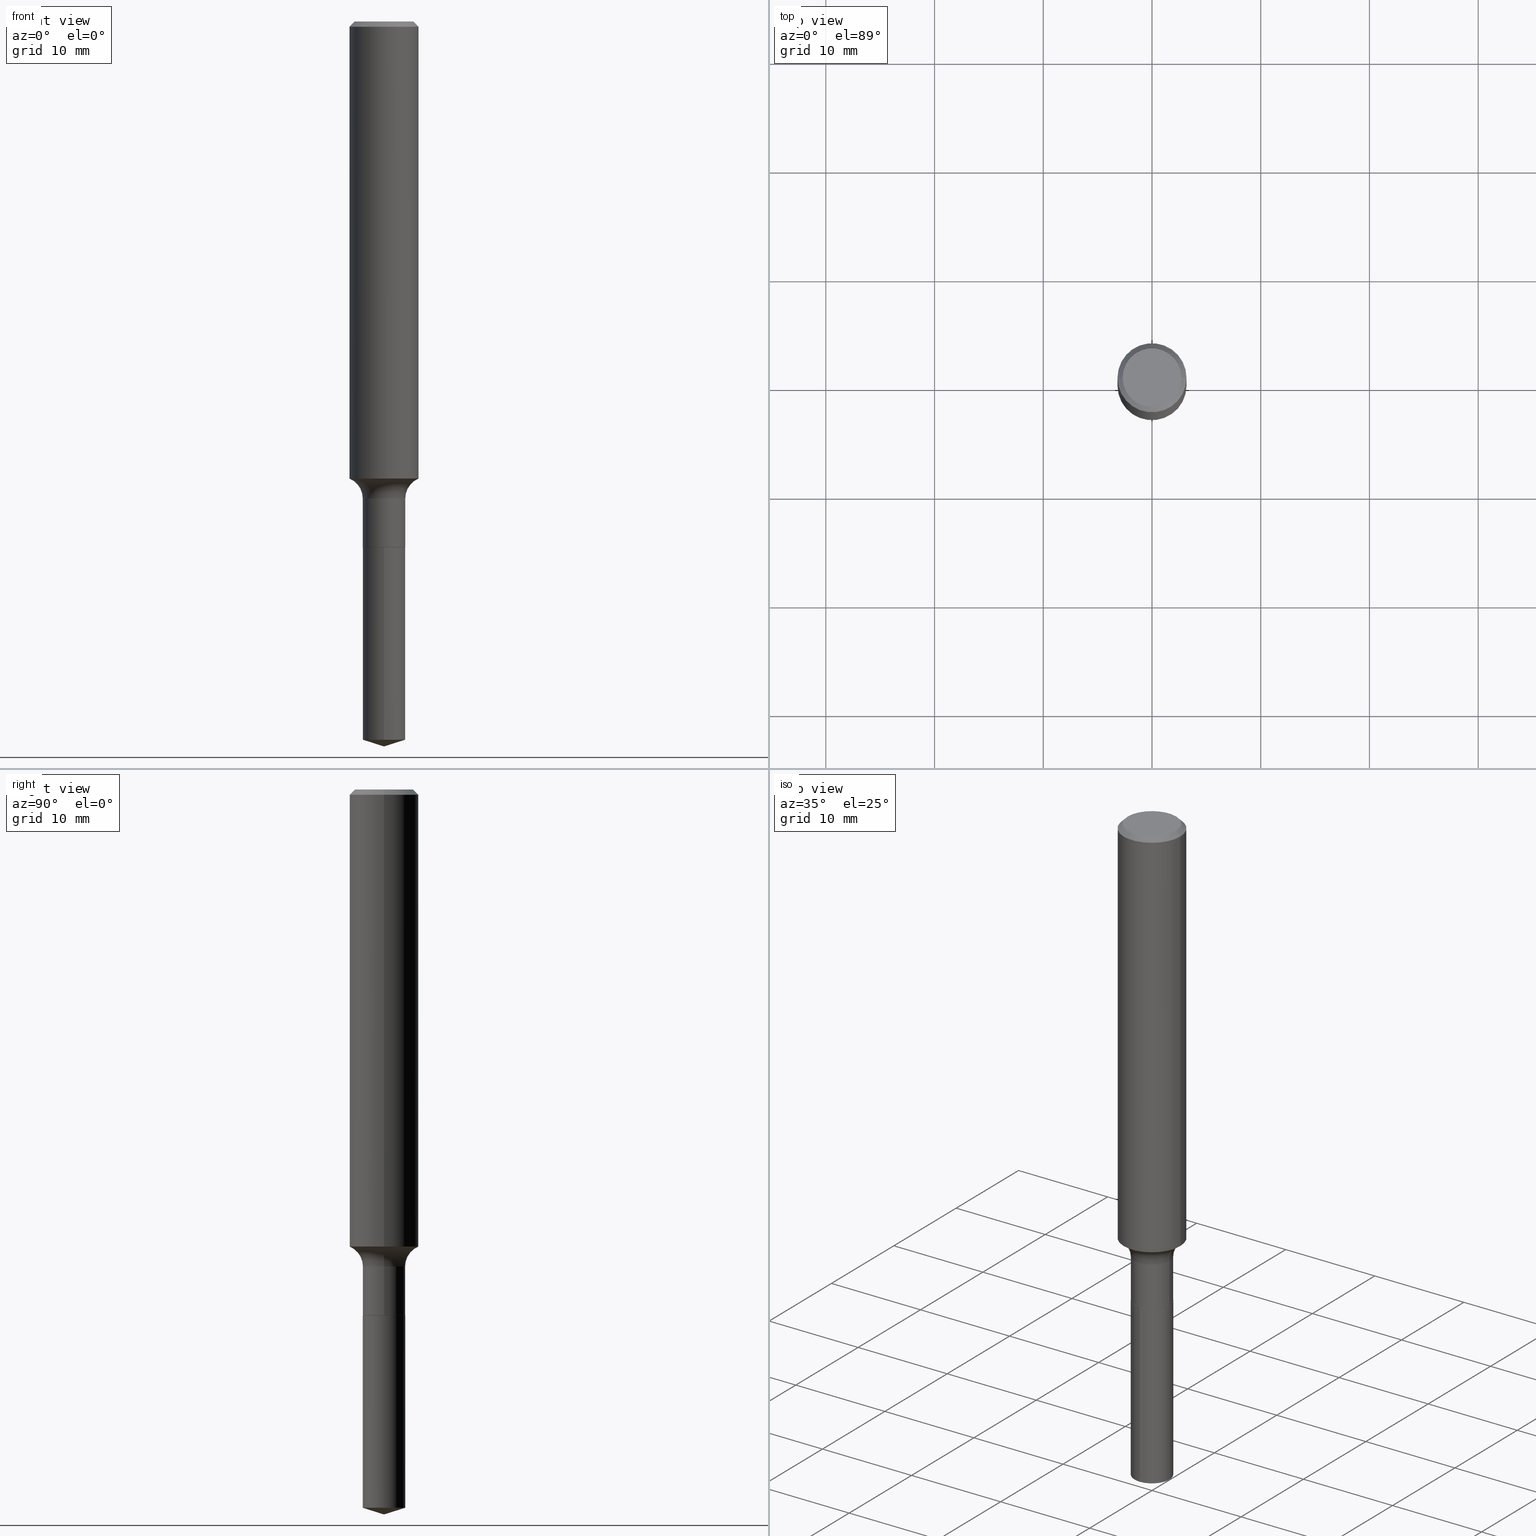
[diagram: canonical four-view strip — front | top / right | iso, engineering-drawing reading convention]
A machine part, canonical four-view strip (front | top / right | iso — engineering-drawing reading convention). The complete STEP part file that produces these views, byte-faithful:
ISO-10303-21;
HEADER;
FILE_DESCRIPTION (( 'STEP AP203' ),
    '1' );
FILE_NAME ('51764.STEP',
    '2024-04-19T13:18:05',
    ( '' ),
    ( '' ),
    'SwSTEP 2.0',
    'SolidWorks 2023',
    '' );
FILE_SCHEMA (( 'CONFIG_CONTROL_DESIGN' ));
ENDSEC;

DATA;
#1 = VERTEX_POINT ( 'NONE', #237 ) ;
#2 = CIRCLE ( 'NONE', #134, 0.07699999999999997125 ) ;
#3 = APPROVAL_STATUS ( 'not_yet_approved' ) ;
#4 = ORGANIZATION ( 'UNSPECIFIED', 'UNSPECIFIED', '' ) ;
#5 = ORIENTED_EDGE ( 'NONE', *, *, #262, .F. ) ;
#6 = DATE_TIME_ROLE ( 'classification_date' ) ;
#7 = DIRECTION ( 'NONE',  ( -2.445468806185136597E-29, 3.491481338843145583E-15, 1.000000000000000000 ) ) ;
#8 = DATE_AND_TIME ( #197, #384 ) ;
#9 = DIRECTION ( 'NONE',  ( 1.000000000000000000, -6.982962677686266711E-15, 0.000000000000000000 ) ) ;
#10 = DATE_TIME_ROLE ( 'creation_date' ) ;
#11 = DIRECTION ( 'NONE',  ( 2.445442214276502964E-29, -3.491519419969825765E-15, -1.000000000000000000 ) ) ;
#12 = MECHANICAL_CONTEXT ( 'NONE', #323, 'mechanical' ) ;
#13 = EDGE_CURVE ( 'NONE', #137, #343, #199, .T. ) ;
#14 = CARTESIAN_POINT ( 'NONE',  ( 5.471179065353404421E-16, 0.07699999999999086742, -2.600721993256319475 ) ) ;
#15 = FACE_OUTER_BOUND ( 'NONE', #427, .T. ) ;
#16 = CARTESIAN_POINT ( 'NONE',  ( 0.1250000000000000000, -9.230275248247509846E-16, -0.01875000000000013808 ) ) ;
#17 = CIRCLE ( 'NONE', #452, 0.07699999999999998512 ) ;
#18 = CC_DESIGN_APPROVAL ( #242, ( #141 ) ) ;
#19 = EDGE_LOOP ( 'NONE', ( #354, #466, #403, #139 ) ) ;
#20 = EDGE_CURVE ( 'NONE', #35, #359, #177, .T. ) ;
#21 = DIRECTION ( 'NONE',  ( -6.982962677686266711E-15, -1.000000000000000000, 0.000000000000000000 ) ) ;
#22 = VERTEX_POINT ( 'NONE', #355 ) ;
#23 = CARTESIAN_POINT ( 'NONE',  ( 6.359965980900373089E-29, -9.080398838931874452E-15, -2.600721993256319475 ) ) ;
#24 = ORIENTED_EDGE ( 'NONE', *, *, #330, .F. ) ;
#25 = DIRECTION ( 'NONE',  ( -2.445442214276503244E-29, 3.491519419969825765E-15, 1.000000000000000000 ) ) ;
#26 = CLOSED_SHELL ( 'NONE', ( #85, #312, #105, #477, #78 ) ) ;
#27 = VERTEX_POINT ( 'NONE', #313 ) ;
#28 = DIRECTION ( 'NONE',  ( -2.445468806185136597E-29, 3.491481338843145583E-15, 1.000000000000000000 ) ) ;
#29 = EDGE_CURVE ( 'NONE', #419, #343, #310, .T. ) ;
#30 = ORIENTED_EDGE ( 'NONE', *, *, #351, .F. ) ;
#31 = LINE ( 'NONE', #302, #179 ) ;
#32 = CARTESIAN_POINT ( 'NONE',  ( 4.585254011597164750E-31, -6.546527510330946532E-17, -0.01875000000000013808 ) ) ;
#33 = EDGE_CURVE ( 'NONE', #359, #35, #58, .T. ) ;
#34 = FACE_OUTER_BOUND ( 'NONE', #19, .T. ) ;
#35 = VERTEX_POINT ( 'NONE', #122 ) ;
#36 = DIRECTION ( 'NONE',  ( 0.7071067811866199593, -2.468850131083015945E-15, 0.7071067811864750752 ) ) ;
#37 = EDGE_CURVE ( 'NONE', #364, #317, #361, .T. ) ;
#38 = VERTEX_POINT ( 'NONE', #14 ) ;
#39 = AXIS2_PLACEMENT_3D ( 'NONE', #87, #307, #318 ) ;
#40 = APPROVAL_PERSON_ORGANIZATION ( #234, #269, #113 ) ;
#41 = APPROVAL_ROLE ( '' ) ;
#42 = DIRECTION ( 'NONE',  ( 1.000000000000000000, -6.982962677686266711E-15, 4.875930095424100059E-29 ) ) ;
#43 = CARTESIAN_POINT ( 'NONE',  ( -0.07649999999999998468, -6.101566049126761138E-15, -1.903999999999999915 ) ) ;
#44 = DATE_AND_TIME ( #455, #144 ) ;
#45 = DIRECTION ( 'NONE',  ( -2.445468806185136597E-29, 3.491481338843145583E-15, 1.000000000000000000 ) ) ;
#46 = DATE_AND_TIME ( #161, #128 ) ;
#47 = PERSON ( 'UNSPECIFIED', 'UNSPECIFIED', 'UNSPECIFIED', ('UNSPECIFIED'), ('UNSPECIFIED'), ('UNSPECIFIED') ) ;
#48 = AXIS2_PLACEMENT_3D ( 'NONE', #281, #235, #245 ) ;
#49 = CARTESIAN_POINT ( 'NONE',  ( -8.985791608710114057E-28, 1.282962285160454060E-13, 36.74507874015748143 ) ) ;
#50 = CIRCLE ( 'NONE', #321, 0.07649999999999998468 ) ;
#51 = DATE_AND_TIME ( #392, #259 ) ;
#52 = PLANE ( 'NONE',  #461 ) ;
#53 = ORIENTED_EDGE ( 'NONE', *, *, #330, .T. ) ;
#54 = DIRECTION ( 'NONE',  ( -2.445468806185136597E-29, 3.491481338843145583E-15, 1.000000000000000000 ) ) ;
#55 = CC_DESIGN_DATE_AND_TIME_ASSIGNMENT ( #51, #6, ( #408 ) ) ;
#56 = ORIENTED_EDGE ( 'NONE', *, *, #345, .F. ) ;
#57 = CARTESIAN_POINT ( 'NONE',  ( 0.000000000000000000, 0.000000000000000000, 0.000000000000000000 ) ) ;
#58 = CIRCLE ( 'NONE', #48, 0.07699999999999998512 ) ;
#59 = VECTOR ( 'NONE', #261, 39.37007874015748854 ) ;
#60 = DIRECTION ( 'NONE',  ( -2.445468806185136597E-29, 3.491481338843145583E-15, 1.000000000000000000 ) ) ;
#61 = EDGE_LOOP ( 'NONE', ( #367, #153, #280, #373 ) ) ;
#62 = CARTESIAN_POINT ( 'NONE',  ( 4.223080081401112602E-29, -6.029439124048228051E-15, -1.726900000000000102 ) ) ;
#63 = ORIENTED_EDGE ( 'NONE', *, *, #491, .F. ) ;
#64 = CC_DESIGN_PERSON_AND_ORGANIZATION_ASSIGNMENT ( #123, #387, ( #159 ) ) ;
#65 = CARTESIAN_POINT ( 'NONE',  ( 6.359965980900373089E-29, -9.080398838931874452E-15, -2.600721993256319475 ) ) ;
#66 = CONICAL_SURFACE ( 'NONE', #344, 0.07649999999999998468, 0.7853981633975507526 ) ;
#67 = VERTEX_POINT ( 'NONE', #116 ) ;
#68 = APPROVAL_PERSON_ORGANIZATION ( #311, #242, #41 ) ;
#69 = FACE_OUTER_BOUND ( 'NONE', #370, .T. ) ;
#70 = LINE ( 'NONE', #298, #81 ) ;
#71 = ADVANCED_FACE ( 'NONE', ( #15 ), #52, .F. ) ;
#72 = AXIS2_PLACEMENT_3D ( 'NONE', #433, #171, #246 ) ;
#73 = DIRECTION ( 'NONE',  ( -2.445468806185136597E-29, 3.491481338843145583E-15, 1.000000000000000000 ) ) ;
#74 = ORIENTED_EDGE ( 'NONE', *, *, #432, .T. ) ;
#75 = DIRECTION ( 'NONE',  ( -2.445468806185136877E-29, 3.491481338843145188E-15, 1.000000000000000000 ) ) ;
#76 = ORIENTED_EDGE ( 'NONE', *, *, #345, .T. ) ;
#77 = PERSON_AND_ORGANIZATION ( #47, #4 ) ;
#78 = ADVANCED_FACE ( 'NONE', ( #278 ), #423, .F. ) ;
#79 = CARTESIAN_POINT ( 'NONE',  ( -0.07699999999999998512, -5.790619019732800574E-15, -1.903499999999999970 ) ) ;
#80 = CIRCLE ( 'NONE', #274, 0.07800000000000006928 ) ;
#81 = VECTOR ( 'NONE', #107, 39.37007874015748143 ) ;
#82 = SHAPE_DEFINITION_REPRESENTATION ( #319, #154 ) ;
#83 = LINE ( 'NONE', #120, #320 ) ;
#84 = DIRECTION ( 'NONE',  ( -1.000000000000000000, 6.982962677686265922E-15, -4.876176775795935793E-29 ) ) ;
#85 = ADVANCED_FACE ( 'NONE', ( #240 ), #429, .T. ) ;
#86 = PERSON_AND_ORGANIZATION_ROLE ( 'creator' ) ;
#87 = CARTESIAN_POINT ( 'NONE',  ( -0.1549999999999999989, -4.928097883620073362E-15, -1.726900000000000102 ) ) ;
#88 = ORIENTED_EDGE ( 'NONE', *, *, #231, .T. ) ;
#89 = VECTOR ( 'NONE', #316, 39.37007874015748143 ) ;
#90 = DIRECTION ( 'NONE',  ( -2.445468806185136597E-29, 3.491481338843145583E-15, 1.000000000000000000 ) ) ;
#91 = EDGE_CURVE ( 'NONE', #22, #364, #83, .T. ) ;
#92 = CARTESIAN_POINT ( 'NONE',  ( 5.471179065353235802E-16, 0.07699999999999335154, -1.904000000000000137 ) ) ;
#93 = DIRECTION ( 'NONE',  ( -2.445442214276503244E-29, 3.491519419969825765E-15, 1.000000000000000000 ) ) ;
#94 = CARTESIAN_POINT ( 'NONE',  ( -5.376881261817957849E-16, -0.07700000000000663258, -1.903999999999999693 ) ) ;
#95 = CIRCLE ( 'NONE', #210, 0.07649999999999998468 ) ;
#96 = DIRECTION ( 'NONE',  ( -2.445442214276503525E-29, 3.491519419969825765E-15, 1.000000000000000000 ) ) ;
#97 = ORIENTED_EDGE ( 'NONE', *, *, #410, .T. ) ;
#98 = EDGE_CURVE ( 'NONE', #137, #129, #17, .T. ) ;
#99 = DIRECTION ( 'NONE',  ( 1.000000000000000000, -6.982962677686264344E-15, 0.000000000000000000 ) ) ;
#100 = VERTEX_POINT ( 'NONE', #43 ) ;
#101 = DIRECTION ( 'NONE',  ( -1.000000000000000000, 6.982962677686266711E-15, 0.000000000000000000 ) ) ;
#102 = AXIS2_PLACEMENT_3D ( 'NONE', #357, #425, #195 ) ;
#103 = VECTOR ( 'NONE', #189, 39.37007874015748143 ) ;
#104 = DIRECTION ( 'NONE',  ( -2.445442214276503244E-29, 3.491519419969825765E-15, 1.000000000000000000 ) ) ;
#105 = ADVANCED_FACE ( 'NONE', ( #383 ), #241, .T. ) ;
#106 = CARTESIAN_POINT ( 'NONE',  ( 6.419285812475821437E-29, -9.165238477420794900E-15, -2.625000000000000000 ) ) ;
#107 = DIRECTION ( 'NONE',  ( -2.445468806185136877E-29, 3.491481338843145188E-15, 1.000000000000000000 ) ) ;
#108 = ORIENTED_EDGE ( 'NONE', *, *, #368, .T. ) ;
#109 = AXIS2_PLACEMENT_3D ( 'NONE', #184, #296, #448 ) ;
#110 = FACE_OUTER_BOUND ( 'NONE', #288, .T. ) ;
#111 = ORIENTED_EDGE ( 'NONE', *, *, #13, .F. ) ;
#112 = CC_DESIGN_PERSON_AND_ORGANIZATION_ASSIGNMENT ( #77, #86, ( #141 ) ) ;
#113 = APPROVAL_ROLE ( '' ) ;
#114 = VERTEX_POINT ( 'NONE', #276 ) ;
#115 = DIRECTION ( 'NONE',  ( 1.000000000000000000, 0.000000000000000000, 0.000000000000000000 ) ) ;
#116 = CARTESIAN_POINT ( 'NONE',  ( 0.1062499999999999972, -8.259777185439879685E-16, 6.505936120475796882E-18 ) ) ;
#117 = AXIS2_PLACEMENT_3D ( 'NONE', #297, #104, #300 ) ;
#118 = SECURITY_CLASSIFICATION_LEVEL ( 'unclassified' ) ;
#119 = EDGE_CURVE ( 'NONE', #67, #22, #166, .T. ) ;
#120 = CARTESIAN_POINT ( 'NONE',  ( -0.1250000000000000000, 8.074050596074738982E-16, -0.01875000000000013808 ) ) ;
#121 =( NAMED_UNIT ( * ) SI_UNIT ( $, .STERADIAN. ) SOLID_ANGLE_UNIT ( ) );
#122 = CARTESIAN_POINT ( 'NONE',  ( 5.471179065353406393E-16, 0.07699999999999335154, -1.904000000000000137 ) ) ;
#123 = PERSON_AND_ORGANIZATION ( #47, #4 ) ;
#124 = DIRECTION ( 'NONE',  ( -6.982962677686266711E-15, -1.000000000000000000, 3.547854537226316370E-15 ) ) ;
#125 = ORIENTED_EDGE ( 'NONE', *, *, #13, .T. ) ;
#126 = ADVANCED_FACE ( 'NONE', ( #198 ), #393, .T. ) ;
#127 = FACE_OUTER_BOUND ( 'NONE', #454, .T. ) ;
#128 = LOCAL_TIME ( 9, 18, 5.000000000000000000, #352 ) ;
#129 = VERTEX_POINT ( 'NONE', #164 ) ;
#130 = DIRECTION ( 'NONE',  ( -2.445468806185136597E-29, 3.491481338843145583E-15, 1.000000000000000000 ) ) ;
#131 = CARTESIAN_POINT ( 'NONE',  ( -0.07699999999999997125, -5.790619019732800574E-15, -1.726900000000000102 ) ) ;
#132 = DIMENSIONAL_EXPONENTS ( 1.000000000000000000, 0.000000000000000000, 0.000000000000000000, 0.000000000000000000, 0.000000000000000000, 0.000000000000000000, 0.000000000000000000 ) ;
#133 = CARTESIAN_POINT ( 'NONE',  ( 0.1250000000000000000, -9.383356098140928781E-16, -0.01875000000000013808 ) ) ;
#134 = AXIS2_PLACEMENT_3D ( 'NONE', #62, #482, #168 ) ;
#135 = EDGE_CURVE ( 'NONE', #100, #114, #95, .T. ) ;
#136 = VECTOR ( 'NONE', #228, 39.37007874015748143 ) ;
#137 = VERTEX_POINT ( 'NONE', #79 ) ;
#138 = LINE ( 'NONE', #94, #413 ) ;
#139 = ORIENTED_EDGE ( 'NONE', *, *, #91, .F. ) ;
#140 = CARTESIAN_POINT ( 'NONE',  ( 0.1250000000000002776, -6.650922802362306987E-15, -1.654899999999999816 ) ) ;
#141 = PRODUCT_DEFINITION ( 'UNKNOWN', '', #159, #411 ) ;
#142 = CARTESIAN_POINT ( 'NONE',  ( -0.1250000000000002776, -4.889874047951393683E-15, -1.654899999999999816 ) ) ;
#143 = AXIS2_PLACEMENT_3D ( 'NONE', #478, #54, #293 ) ;
#144 = LOCAL_TIME ( 9, 18, 5.000000000000000000, #315 ) ;
#145 = DIRECTION ( 'NONE',  ( -2.445468806185136597E-29, 3.491481338843145583E-15, 1.000000000000000000 ) ) ;
#146 = DIRECTION ( 'NONE',  ( 1.000000000000000000, -6.982962677686271444E-15, 0.000000000000000000 ) ) ;
#147 = ORIENTED_EDGE ( 'NONE', *, *, #135, .F. ) ;
#148 = FACE_OUTER_BOUND ( 'NONE', #286, .T. ) ;
#149 = ORIENTED_EDGE ( 'NONE', *, *, #37, .F. ) ;
#150 = APPROVAL ( #389, 'UNSPECIFIED' ) ;
#151 = AXIS2_PLACEMENT_3D ( 'NONE', #206, #90, #42 ) ;
#152 = DIRECTION ( 'NONE',  ( 0.000000000000000000, 0.000000000000000000, 1.000000000000000000 ) ) ;
#153 = ORIENTED_EDGE ( 'NONE', *, *, #336, .T. ) ;
#154 = ADVANCED_BREP_SHAPE_REPRESENTATION ( '51764', ( #170, #178, #474 ), #398 ) ;
#155 = APPROVAL_DATE_TIME ( #46, #242 ) ;
#156 = DIRECTION ( 'NONE',  ( -0.7071067811865449082, 2.468850131082229450E-15, -0.7071067811865501263 ) ) ;
#157 = CARTESIAN_POINT ( 'NONE',  ( 4.656172606976500152E-29, -6.647780469157349069E-15, -1.903999999999999915 ) ) ;
#158 = AXIS2_PLACEMENT_3D ( 'NONE', #386, #11, #426 ) ;
#159 = PRODUCT_DEFINITION_FORMATION_WITH_SPECIFIED_SOURCE ( 'ANY', '', #365, .NOT_KNOWN. ) ;
#160 = DIRECTION ( 'NONE',  ( -2.445442214276503244E-29, 3.491519419969825765E-15, 1.000000000000000000 ) ) ;
#161 = CALENDAR_DATE ( 2024, 19, 4 ) ;
#162 = DIRECTION ( 'NONE',  ( -2.445442214276503244E-29, 3.491519419969825765E-15, 1.000000000000000000 ) ) ;
#163 = ORIENTED_EDGE ( 'NONE', *, *, #20, .F. ) ;
#164 = CARTESIAN_POINT ( 'NONE',  ( 0.07699999999999998512, -7.183722854669770387E-15, -1.903499999999999970 ) ) ;
#165 = EDGE_CURVE ( 'NONE', #317, #364, #256, .T. ) ;
#166 = CIRCLE ( 'NONE', #151, 0.1062499999999999972 ) ;
#167 = AXIS2_PLACEMENT_3D ( 'NONE', #188, #145, #185 ) ;
#168 = DIRECTION ( 'NONE',  ( 1.000000000000000000, -6.982962677686273021E-15, 0.000000000000000000 ) ) ;
#169 = ORIENTED_EDGE ( 'NONE', *, *, #375, .T. ) ;
#170 = MANIFOLD_SOLID_BREP ( 'Body-Move/Copy2[1]', #26 ) ;
#171 = DIRECTION ( 'NONE',  ( -2.445468806185136597E-29, 3.491481338843145583E-15, 1.000000000000000000 ) ) ;
#172 = EDGE_LOOP ( 'NONE', ( #305, #209, #301, #382 ) ) ;
#173 = EDGE_CURVE ( 'NONE', #67, #317, #394, .T. ) ;
#174 = CARTESIAN_POINT ( 'NONE',  ( 4.656172606976500152E-29, -6.647780469157349069E-15, -1.903999999999999915 ) ) ;
#175 = EDGE_LOOP ( 'NONE', ( #254, #24, #88, #314 ) ) ;
#176 = FACE_OUTER_BOUND ( 'NONE', #172, .T. ) ;
#177 = CIRCLE ( 'NONE', #265, 0.07699999999999998512 ) ;
#178 = MANIFOLD_SOLID_BREP ( 'Body-Move/Copy2[2]', #391 ) ;
#179 = VECTOR ( 'NONE', #75, 39.37007874015748143 ) ;
#180 = ORIENTED_EDGE ( 'NONE', *, *, #486, .F. ) ;
#181 = PLANE ( 'NONE',  #407 ) ;
#182 = PRODUCT_RELATED_PRODUCT_CATEGORY ( 'detail', '', ( #365 ) ) ;
#183 = ORIENTED_EDGE ( 'NONE', *, *, #491, .T. ) ;
#184 = CARTESIAN_POINT ( 'NONE',  ( 4.585254011597164750E-31, -6.546527510330946532E-17, -0.01875000000000013808 ) ) ;
#185 = DIRECTION ( 'NONE',  ( 1.000000000000000000, -6.982962677686264344E-15, 0.000000000000000000 ) ) ;
#186 = AXIS2_PLACEMENT_3D ( 'NONE', #253, #60, #360 ) ;
#187 = CC_DESIGN_SECURITY_CLASSIFICATION ( #408, ( #159 ) ) ;
#188 = CARTESIAN_POINT ( 'NONE',  ( 4.656172606976500152E-29, -6.647780469157349069E-15, -1.903999999999999915 ) ) ;
#189 = DIRECTION ( 'NONE',  ( -0.7071067811866199593, 7.493145998870616062E-15, 0.7071067811864750752 ) ) ;
#190 = EDGE_CURVE ( 'NONE', #129, #27, #369, .T. ) ;
#191 = ORIENTED_EDGE ( 'NONE', *, *, #91, .T. ) ;
#192 = CARTESIAN_POINT ( 'NONE',  ( 4.223080081401112602E-29, -6.029439124048228051E-15, -1.726900000000000102 ) ) ;
#193 = ORIENTED_EDGE ( 'NONE', *, *, #417, .F. ) ;
#194 = CC_DESIGN_APPROVAL ( #150, ( #159 ) ) ;
#195 = DIRECTION ( 'NONE',  ( 1.000000000000000000, -6.982962677686266711E-15, 4.876176775795936353E-29 ) ) ;
#196 = ADVANCED_FACE ( 'NONE', ( #395 ), #329, .T. ) ;
#197 = CALENDAR_DATE ( 2024, 19, 4 ) ;
#198 = FACE_OUTER_BOUND ( 'NONE', #442, .T. ) ;
#199 = LINE ( 'NONE', #271, #89 ) ;
#200 = EDGE_LOOP ( 'NONE', ( #252, #183, #30 ) ) ;
#201 = VECTOR ( 'NONE', #96, 39.37007874015748143 ) ;
#202 = TOROIDAL_SURFACE ( 'NONE', #284, 0.1549999999999999989, 0.07800000000000006928 ) ;
#203 = APPROVAL_ROLE ( '' ) ;
#204 = CARTESIAN_POINT ( 'NONE',  ( 4.654949872573407911E-29, -6.646034728487927566E-15, -1.903499999999999970 ) ) ;
#205 = ADVANCED_FACE ( 'NONE', ( #439 ), #291, .T. ) ;
#206 = CARTESIAN_POINT ( 'NONE',  ( -1.591006383764329968E-46, 2.271535455632767580E-32, 6.505936120470314915E-18 ) ) ;
#207 = ORIENTED_EDGE ( 'NONE', *, *, #37, .T. ) ;
#208 = DIRECTION ( 'NONE',  ( -6.982962677686266711E-15, -1.000000000000000000, 3.491481338843145583E-15 ) ) ;
#209 = ORIENTED_EDGE ( 'NONE', *, *, #451, .T. ) ;
#210 = AXIS2_PLACEMENT_3D ( 'NONE', #462, #471, #420 ) ;
#211 = AXIS2_PLACEMENT_3D ( 'NONE', #32, #260, #101 ) ;
#212 = DIRECTION ( 'NONE',  ( -2.445468806185136597E-29, 3.491481338843145583E-15, 1.000000000000000000 ) ) ;
#213 = EDGE_CURVE ( 'NONE', #27, #343, #2, .T. ) ;
#214 = CARTESIAN_POINT ( 'NONE',  ( 0.07699999999999998512, -5.376881261818424263E-16, 3.754656117362870056E-30 ) ) ;
#215 = ORIENTED_EDGE ( 'NONE', *, *, #375, .F. ) ;
#216 = CARTESIAN_POINT ( 'NONE',  ( 4.223080081401112602E-29, -6.029439124048228051E-15, -1.726900000000000102 ) ) ;
#217 = EDGE_LOOP ( 'NONE', ( #97, #125, #405, #303 ) ) ;
#218 = CARTESIAN_POINT ( 'NONE',  ( 4.656172606976500152E-29, -6.647780469157349069E-15, -1.903999999999999915 ) ) ;
#219 = VECTOR ( 'NONE', #372, 39.37007874015748143 ) ;
#220 = AXIS2_PLACEMENT_3D ( 'NONE', #23, #402, #289 ) ;
#221 = ORIENTED_EDGE ( 'NONE', *, *, #486, .T. ) ;
#222 = DIRECTION ( 'NONE',  ( -2.445468806185136597E-29, 3.491481338843145583E-15, 1.000000000000000000 ) ) ;
#223 =( LENGTH_UNIT ( ) NAMED_UNIT ( * ) SI_UNIT ( $, .METRE. ) );
#224 = AXIS2_PLACEMENT_3D ( 'NONE', #363, #93, #285 ) ;
#225 = EDGE_CURVE ( 'NONE', #1, #359, #138, .T. ) ;
#226 = DIRECTION ( 'NONE',  ( -2.445468806185136597E-29, 3.491481338843145583E-15, 1.000000000000000000 ) ) ;
#227 = ORIENTED_EDGE ( 'NONE', *, *, #255, .F. ) ;
#228 = DIRECTION ( 'NONE',  ( 6.776566513254277070E-15, 0.9537169507482315955, 0.3007057995042582976 ) ) ;
#229 = ORIENTED_EDGE ( 'NONE', *, *, #98, .T. ) ;
#230 = PERSON_AND_ORGANIZATION ( #47, #4 ) ;
#231 = EDGE_CURVE ( 'NONE', #435, #27, #80, .T. ) ;
#232 = DIRECTION ( 'NONE',  ( -2.445468806185136597E-29, 3.491481338843145583E-15, 1.000000000000000000 ) ) ;
#233 = CC_DESIGN_APPROVAL ( #269, ( #408 ) ) ;
#234 = PERSON_AND_ORGANIZATION ( #47, #4 ) ;
#235 = DIRECTION ( 'NONE',  ( -2.445442214276503244E-29, 3.491519419969825765E-15, 1.000000000000000000 ) ) ;
#236 = PERSON_AND_ORGANIZATION ( #47, #4 ) ;
#237 = CARTESIAN_POINT ( 'NONE',  ( -5.376881261817786271E-16, -0.07700000000000904732, -2.600721993256319475 ) ) ;
#238 = APPLICATION_CONTEXT ( 'configuration controlled 3d designs of mechanical parts and assemblies' ) ;
#239 = COORDINATED_UNIVERSAL_TIME_OFFSET ( 5, 0, .BEHIND. ) ;
#240 = FACE_OUTER_BOUND ( 'NONE', #61, .T. ) ;
#241 = CONICAL_SURFACE ( 'NONE', #371, 124.8659371009191261, 1.265363707695901008 ) ;
#242 = APPROVAL ( #349, 'UNSPECIFIED' ) ;
#243 = AXIS2_PLACEMENT_3D ( 'NONE', #337, #226, #146 ) ;
#244 = PERSON_AND_ORGANIZATION ( #47, #4 ) ;
#245 = DIRECTION ( 'NONE',  ( -6.982962677686266711E-15, -1.000000000000000000, 3.547854537226316370E-15 ) ) ;
#246 = DIRECTION ( 'NONE',  ( 1.000000000000000000, -6.982962677686267499E-15, 0.000000000000000000 ) ) ;
#247 = LINE ( 'NONE', #92, #201 ) ;
#248 = CC_DESIGN_PERSON_AND_ORGANIZATION_ASSIGNMENT ( #308, #428, ( #159 ) ) ;
#249 = TOROIDAL_SURFACE ( 'NONE', #377, 0.1549999999999999989, 0.07800000000000006928 ) ;
#250 = FACE_OUTER_BOUND ( 'NONE', #397, .T. ) ;
#251 = CARTESIAN_POINT ( 'NONE',  ( -1.591006383764329968E-46, 2.271535455632767580E-32, 6.505936120470314915E-18 ) ) ;
#252 = ORIENTED_EDGE ( 'NONE', *, *, #432, .F. ) ;
#253 = CARTESIAN_POINT ( 'NONE',  ( 4.047006327355782261E-29, -5.778052467651521282E-15, -1.654899999999999816 ) ) ;
#254 = ORIENTED_EDGE ( 'NONE', *, *, #29, .F. ) ;
#255 = EDGE_CURVE ( 'NONE', #1, #38, #396, .T. ) ;
#256 = CIRCLE ( 'NONE', #430, 0.1250000000000000000 ) ;
#257 = CARTESIAN_POINT ( 'NONE',  ( 4.223080081401112602E-29, -6.029439124048228051E-15, -1.726900000000000102 ) ) ;
#258 = AXIS2_PLACEMENT_3D ( 'NONE', #257, #409, #334 ) ;
#259 = LOCAL_TIME ( 9, 18, 5.000000000000000000, #347 ) ;
#260 = DIRECTION ( 'NONE',  ( 2.445468806185136597E-29, -3.491481338843145583E-15, -1.000000000000000000 ) ) ;
#261 = DIRECTION ( 'NONE',  ( -6.659769872151650232E-15, -0.9537169507482294861, 0.3007057995042649035 ) ) ;
#262 = EDGE_CURVE ( 'NONE', #419, #435, #283, .T. ) ;
#263 = CARTESIAN_POINT ( 'NONE',  ( 4.656172606976500152E-29, -6.647780469157349069E-15, -1.903999999999999915 ) ) ;
#264 = EDGE_LOOP ( 'NONE', ( #416, #282 ) ) ;
#265 = AXIS2_PLACEMENT_3D ( 'NONE', #157, #160, #273 ) ;
#266 = CONICAL_SURFACE ( 'NONE', #109, 0.1250000000000000000, 0.7853981633974446153 ) ;
#267 = LINE ( 'NONE', #449, #136 ) ;
#268 = ORIENTED_EDGE ( 'NONE', *, *, #351, .T. ) ;
#269 = APPROVAL ( #3, 'UNSPECIFIED' ) ;
#270 = COORDINATED_UNIVERSAL_TIME_OFFSET ( 5, 0, .BEHIND. ) ;
#271 = CARTESIAN_POINT ( 'NONE',  ( -0.07699999999999998512, 5.471179065352770374E-16, -3.787580019496277076E-30 ) ) ;
#272 = DATE_AND_TIME ( #306, #446 ) ;
#273 = DIRECTION ( 'NONE',  ( -6.982962677686266711E-15, -1.000000000000000000, 3.547854537226316370E-15 ) ) ;
#274 = AXIS2_PLACEMENT_3D ( 'NONE', #322, #208, #99 ) ;
#275 = CIRCLE ( 'NONE', #258, 0.07699999999999997125 ) ;
#276 = CARTESIAN_POINT ( 'NONE',  ( 0.07649999999999998468, -7.181977114000348094E-15, -1.903999999999999915 ) ) ;
#277 = APPLICATION_PROTOCOL_DEFINITION ( 'international standard', 'config_control_design', 1994, #323 ) ;
#278 = FACE_OUTER_BOUND ( 'NONE', #264, .T. ) ;
#279 = ADVANCED_FACE ( 'NONE', ( #476 ), #249, .F. ) ;
#280 = ORIENTED_EDGE ( 'NONE', *, *, #33, .F. ) ;
#281 = CARTESIAN_POINT ( 'NONE',  ( 4.656172606976500152E-29, -6.647780469157349069E-15, -1.903999999999999915 ) ) ;
#282 = ORIENTED_EDGE ( 'NONE', *, *, #20, .T. ) ;
#283 = CIRCLE ( 'NONE', #186, 0.1250000000000001943 ) ;
#284 = AXIS2_PLACEMENT_3D ( 'NONE', #192, #222, #453 ) ;
#285 = DIRECTION ( 'NONE',  ( -6.982962677686265922E-15, -1.000000000000000000, 3.500519750498590442E-15 ) ) ;
#286 = EDGE_LOOP ( 'NONE', ( #333, #356, #108, #483 ) ) ;
#287 = ADVANCED_FACE ( 'NONE', ( #176 ), #66, .T. ) ;
#288 = EDGE_LOOP ( 'NONE', ( #53, #221, #362, #215 ) ) ;
#289 = DIRECTION ( 'NONE',  ( -6.982962677686266711E-15, -1.000000000000000000, 0.000000000000000000 ) ) ;
#290 = AXIS2_PLACEMENT_3D ( 'NONE', #353, #348, #124 ) ;
#291 = CYLINDRICAL_SURFACE ( 'NONE', #143, 0.07699999999999998512 ) ;
#292 = EDGE_LOOP ( 'NONE', ( #456, #56, #191, #207 ) ) ;
#293 = DIRECTION ( 'NONE',  ( 1.000000000000000000, -6.982962677686266711E-15, 4.876176775795936353E-29 ) ) ;
#294 = ORIENTED_EDGE ( 'NONE', *, *, #225, .T. ) ;
#295 = CC_DESIGN_PERSON_AND_ORGANIZATION_ASSIGNMENT ( #236, #385, ( #365 ) ) ;
#296 = DIRECTION ( 'NONE',  ( 2.445468806185136597E-29, -3.491481338843145583E-15, -1.000000000000000000 ) ) ;
#297 = CARTESIAN_POINT ( 'NONE',  ( 4.656172606976500152E-29, -6.647780469157349069E-15, -1.903999999999999915 ) ) ;
#298 = CARTESIAN_POINT ( 'NONE',  ( -0.1250000000000001110, 8.881784197001260212E-16, -6.148668862818637832E-30 ) ) ;
#299 = ADVANCED_FACE ( 'NONE', ( #250 ), #181, .F. ) ;
#300 = DIRECTION ( 'NONE',  ( -6.982962677686266711E-15, -1.000000000000000000, 3.547854537226316370E-15 ) ) ;
#301 = ORIENTED_EDGE ( 'NONE', *, *, #410, .F. ) ;
#302 = CARTESIAN_POINT ( 'NONE',  ( 0.1250000000000001110, -8.728703347107841277E-16, 6.095220969744924646E-30 ) ) ;
#303 = ORIENTED_EDGE ( 'NONE', *, *, #190, .F. ) ;
#304 = APPLICATION_PROTOCOL_DEFINITION ( 'international standard', 'config_control_design', 1994, #238 ) ;
#305 = ORIENTED_EDGE ( 'NONE', *, *, #417, .T. ) ;
#306 = CALENDAR_DATE ( 2024, 19, 4 ) ;
#307 = DIRECTION ( 'NONE',  ( 7.105427357601001859E-15, 1.000000000000000000, -3.491481338843145583E-15 ) ) ;
#308 = PERSON_AND_ORGANIZATION ( #47, #4 ) ;
#309 = DIRECTION ( 'NONE',  ( -6.982962677686265922E-15, -1.000000000000000000, 3.500519750498590442E-15 ) ) ;
#310 = CIRCLE ( 'NONE', #39, 0.07800000000000006928 ) ;
#311 = PERSON_AND_ORGANIZATION ( #47, #4 ) ;
#312 = ADVANCED_FACE ( 'NONE', ( #127 ), #472, .T. ) ;
#313 = CARTESIAN_POINT ( 'NONE',  ( 0.07699999999999997125, -6.567127250230070871E-15, -1.726900000000000102 ) ) ;
#314 = ORIENTED_EDGE ( 'NONE', *, *, #213, .T. ) ;
#315 = COORDINATED_UNIVERSAL_TIME_OFFSET ( 5, 0, .BEHIND. ) ;
#316 = DIRECTION ( 'NONE',  ( -2.445468806185136877E-29, 3.491481338843145188E-15, 1.000000000000000000 ) ) ;
#317 = VERTEX_POINT ( 'NONE', #133 ) ;
#318 = DIRECTION ( 'NONE',  ( -1.000000000000000000, 7.105427357601005014E-15, 0.000000000000000000 ) ) ;
#319 = PRODUCT_DEFINITION_SHAPE ( 'NONE', 'NONE',  #141 ) ;
#320 = VECTOR ( 'NONE', #156, 39.37007874015748143 ) ;
#321 = AXIS2_PLACEMENT_3D ( 'NONE', #263, #73, #490 ) ;
#322 = CARTESIAN_POINT ( 'NONE',  ( 0.1549999999999999989, -7.111798339089599706E-15, -1.726900000000000102 ) ) ;
#323 = APPLICATION_CONTEXT ( 'configuration controlled 3d designs of mechanical parts and assemblies' ) ;
#324 = DIRECTION ( 'NONE',  ( -2.445468806185136597E-29, 3.491481338843145583E-15, 1.000000000000000000 ) ) ;
#325 = DIRECTION ( 'NONE',  ( 0.7071067811865449082, -7.319954787623246579E-15, -0.7071067811865501263 ) ) ;
#326 = ORIENTED_EDGE ( 'NONE', *, *, #469, .F. ) ;
#327 = AXIS2_PLACEMENT_3D ( 'NONE', #65, #25, #21 ) ;
#328 = VECTOR ( 'NONE', #36, 39.37007874015748143 ) ;
#329 = CYLINDRICAL_SURFACE ( 'NONE', #480, 0.1250000000000001110 ) ;
#330 = EDGE_CURVE ( 'NONE', #435, #419, #438, .T. ) ;
#331 = EDGE_LOOP ( 'NONE', ( #180, #341, #169, #149 ) ) ;
#332 = DIRECTION ( 'NONE',  ( 1.000000000000000000, -6.982962677686264344E-15, 0.000000000000000000 ) ) ;
#333 = ORIENTED_EDGE ( 'NONE', *, *, #451, .F. ) ;
#334 = DIRECTION ( 'NONE',  ( 1.000000000000000000, -6.982962677686273021E-15, 0.000000000000000000 ) ) ;
#335 = UNCERTAINTY_MEASURE_WITH_UNIT (LENGTH_MEASURE( 1.000000000000000082E-05 ), #460, 'distance_accuracy_value', 'NONE');
#336 = EDGE_CURVE ( 'NONE', #38, #35, #247, .T. ) ;
#337 = CARTESIAN_POINT ( 'NONE',  ( 4.654949872573407911E-29, -6.646034728487927566E-15, -1.903499999999999970 ) ) ;
#338 = APPROVAL_PERSON_ORGANIZATION ( #230, #150, #203 ) ;
#339 = LINE ( 'NONE', #418, #328 ) ;
#340 = FACE_OUTER_BOUND ( 'NONE', #292, .T. ) ;
#341 = ORIENTED_EDGE ( 'NONE', *, *, #262, .T. ) ;
#342 =( NAMED_UNIT ( * ) PLANE_ANGLE_UNIT ( ) SI_UNIT ( $, .RADIAN. ) );
#343 = VERTEX_POINT ( 'NONE', #131 ) ;
#344 = AXIS2_PLACEMENT_3D ( 'NONE', #218, #28, #332 ) ;
#345 = EDGE_CURVE ( 'NONE', #22, #67, #424, .T. ) ;
#346 = CONICAL_SURFACE ( 'NONE', #211, 0.1250000000000000000, 0.7853981633974446153 ) ;
#347 = COORDINATED_UNIVERSAL_TIME_OFFSET ( 5, 0, .BEHIND. ) ;
#348 = DIRECTION ( 'NONE',  ( -2.445442214276503244E-29, 3.491519419969825765E-15, 1.000000000000000000 ) ) ;
#349 = APPROVAL_STATUS ( 'not_yet_approved' ) ;
#350 = CARTESIAN_POINT ( 'NONE',  ( 4.585254011597164750E-31, -6.546527510330946532E-17, -0.01875000000000013808 ) ) ;
#351 = EDGE_CURVE ( 'NONE', #38, #1, #415, .T. ) ;
#352 = COORDINATED_UNIVERSAL_TIME_OFFSET ( 5, 0, .BEHIND. ) ;
#353 = CARTESIAN_POINT ( 'NONE',  ( 4.656172606976500152E-29, -6.647780469157349069E-15, -1.903999999999999915 ) ) ;
#354 = ORIENTED_EDGE ( 'NONE', *, *, #119, .F. ) ;
#355 = CARTESIAN_POINT ( 'NONE',  ( -0.1062499999999999972, 7.746724220558198188E-16, 6.505936120465012444E-18 ) ) ;
#356 = ORIENTED_EDGE ( 'NONE', *, *, #135, .T. ) ;
#357 = CARTESIAN_POINT ( 'NONE',  ( 0.000000000000000000, 0.000000000000000000, 0.000000000000000000 ) ) ;
#358 = CC_DESIGN_PERSON_AND_ORGANIZATION_ASSIGNMENT ( #244, #421, ( #408 ) ) ;
#359 = VERTEX_POINT ( 'NONE', #366 ) ;
#360 = DIRECTION ( 'NONE',  ( 1.000000000000000000, -6.982962677686267499E-15, 0.000000000000000000 ) ) ;
#361 = CIRCLE ( 'NONE', #406, 0.1250000000000000000 ) ;
#362 = ORIENTED_EDGE ( 'NONE', *, *, #165, .F. ) ;
#363 = CARTESIAN_POINT ( 'NONE',  ( -8.985791608710114057E-28, 1.282962285160454060E-13, 36.74507874015748143 ) ) ;
#364 = VERTEX_POINT ( 'NONE', #380 ) ;
#365 = PRODUCT ( '51764', '51764', '', ( #12 ) ) ;
#366 = CARTESIAN_POINT ( 'NONE',  ( -5.376881261817957849E-16, -0.07700000000000663258, -1.903999999999999693 ) ) ;
#367 = ORIENTED_EDGE ( 'NONE', *, *, #255, .T. ) ;
#368 = EDGE_CURVE ( 'NONE', #114, #129, #339, .T. ) ;
#369 = LINE ( 'NONE', #214, #219 ) ;
#370 = EDGE_LOOP ( 'NONE', ( #485, #268, #294, #163 ) ) ;
#371 = AXIS2_PLACEMENT_3D ( 'NONE', #49, #162, #309 ) ;
#372 = DIRECTION ( 'NONE',  ( -2.445468806185136877E-29, 3.491481338843145188E-15, 1.000000000000000000 ) ) ;
#373 = ORIENTED_EDGE ( 'NONE', *, *, #225, .F. ) ;
#374 = CARTESIAN_POINT ( 'NONE',  ( 0.000000000000000000, 0.000000000000000000, 0.000000000000000000 ) ) ;
#375 = EDGE_CURVE ( 'NONE', #435, #317, #31, .T. ) ;
#376 = CYLINDRICAL_SURFACE ( 'NONE', #488, 0.1250000000000001110 ) ;
#377 = AXIS2_PLACEMENT_3D ( 'NONE', #216, #212, #404 ) ;
#378 = LENGTH_MEASURE_WITH_UNIT ( LENGTH_MEASURE( 0.02539999999999999897 ), #223 );
#379 = ORIENTED_EDGE ( 'NONE', *, *, #119, .T. ) ;
#380 = CARTESIAN_POINT ( 'NONE',  ( -0.1250000000000000000, -2.033580451677288798E-15, -0.01875000000000013808 ) ) ;
#381 = ADVANCED_FACE ( 'NONE', ( #340 ), #346, .T. ) ;
#382 = ORIENTED_EDGE ( 'NONE', *, *, #368, .F. ) ;
#383 = FACE_OUTER_BOUND ( 'NONE', #200, .T. ) ;
#384 = LOCAL_TIME ( 9, 18, 5.000000000000000000, #239 ) ;
#385 = PERSON_AND_ORGANIZATION_ROLE ( 'design_owner' ) ;
#386 = CARTESIAN_POINT ( 'NONE',  ( 4.656172606976500152E-29, -6.647780469157349069E-15, -1.903999999999999915 ) ) ;
#387 = PERSON_AND_ORGANIZATION_ROLE ( 'creator' ) ;
#388 = CARTESIAN_POINT ( 'NONE',  ( -7.955031918821649840E-47, 1.135767727816383790E-32, 3.252968060235157457E-18 ) ) ;
#389 = APPROVAL_STATUS ( 'not_yet_approved' ) ;
#390 = DIRECTION ( 'NONE',  ( 1.000000000000000000, -6.982962677686271444E-15, 0.000000000000000000 ) ) ;
#391 = CLOSED_SHELL ( 'NONE', ( #287, #437, #422, #279, #205, #126, #401, #196, #381, #71, #299, #457 ) ) ;
#392 = CALENDAR_DATE ( 2024, 19, 4 ) ;
#393 = CYLINDRICAL_SURFACE ( 'NONE', #102, 0.07699999999999998512 ) ;
#394 = LINE ( 'NONE', #16, #445 ) ;
#395 = FACE_OUTER_BOUND ( 'NONE', #331, .T. ) ;
#396 = CIRCLE ( 'NONE', #327, 0.07699999999999998512 ) ;
#397 = EDGE_LOOP ( 'NONE', ( #193, #147 ) ) ;
#398 =( GEOMETRIC_REPRESENTATION_CONTEXT ( 3 ) GLOBAL_UNCERTAINTY_ASSIGNED_CONTEXT ( ( #335 ) ) GLOBAL_UNIT_ASSIGNED_CONTEXT ( ( #460, #342, #121 ) ) REPRESENTATION_CONTEXT ( 'NONE', 'WORKASPACE' ) );
#399 = DIRECTION ( 'NONE',  ( 1.000000000000000000, -6.982962677686266711E-15, 4.875930095424100059E-29 ) ) ;
#400 = EDGE_LOOP ( 'NONE', ( #5, #475, #470, #450 ) ) ;
#401 = ADVANCED_FACE ( 'NONE', ( #492 ), #202, .F. ) ;
#402 = DIRECTION ( 'NONE',  ( -2.445442214276503244E-29, 3.491519419969825765E-15, 1.000000000000000000 ) ) ;
#403 = ORIENTED_EDGE ( 'NONE', *, *, #165, .T. ) ;
#404 = DIRECTION ( 'NONE',  ( 1.000000000000000000, -6.982962677686269077E-15, 4.883557194083112901E-29 ) ) ;
#405 = ORIENTED_EDGE ( 'NONE', *, *, #213, .F. ) ;
#406 = AXIS2_PLACEMENT_3D ( 'NONE', #468, #232, #459 ) ;
#407 = AXIS2_PLACEMENT_3D ( 'NONE', #174, #434, #436 ) ;
#408 = SECURITY_CLASSIFICATION ( '', '', #118 ) ;
#409 = DIRECTION ( 'NONE',  ( -2.445468806185136597E-29, 3.491481338843145583E-15, 1.000000000000000000 ) ) ;
#410 = EDGE_CURVE ( 'NONE', #129, #137, #473, .T. ) ;
#411 = DESIGN_CONTEXT ( 'detailed design', #238, 'design' ) ;
#412 = CARTESIAN_POINT ( 'NONE',  ( 6.419285812475821437E-29, -9.165238477420791745E-15, -2.625000000000000000 ) ) ;
#413 = VECTOR ( 'NONE', #441, 39.37007874015748143 ) ;
#414 = LINE ( 'NONE', #106, #59 ) ;
#415 = CIRCLE ( 'NONE', #220, 0.07699999999999998512 ) ;
#416 = ORIENTED_EDGE ( 'NONE', *, *, #33, .T. ) ;
#417 = EDGE_CURVE ( 'NONE', #114, #100, #50, .T. ) ;
#418 = CARTESIAN_POINT ( 'NONE',  ( 0.07649999999999998468, -7.181977114000348094E-15, -1.903999999999999915 ) ) ;
#419 = VERTEX_POINT ( 'NONE', #142 ) ;
#420 = DIRECTION ( 'NONE',  ( 1.000000000000000000, -6.982962677686264344E-15, 0.000000000000000000 ) ) ;
#421 = PERSON_AND_ORGANIZATION_ROLE ( 'classification_officer' ) ;
#422 = ADVANCED_FACE ( 'NONE', ( #110 ), #376, .T. ) ;
#423 = PLANE ( 'NONE',  #158 ) ;
#424 = CIRCLE ( 'NONE', #463, 0.1062499999999999972 ) ;
#425 = DIRECTION ( 'NONE',  ( -2.445468806185136597E-29, 3.491481338843145583E-15, 1.000000000000000000 ) ) ;
#426 = DIRECTION ( 'NONE',  ( 6.982962677686265922E-15, 1.000000000000000000, -3.491519419969825765E-15 ) ) ;
#427 = EDGE_LOOP ( 'NONE', ( #76, #379 ) ) ;
#428 = PERSON_AND_ORGANIZATION_ROLE ( 'design_supplier' ) ;
#429 = CYLINDRICAL_SURFACE ( 'NONE', #290, 0.07699999999999998512 ) ;
#430 = AXIS2_PLACEMENT_3D ( 'NONE', #350, #7, #9 ) ;
#431 = CONICAL_SURFACE ( 'NONE', #167, 0.07649999999999998468, 0.7853981633975507526 ) ;
#432 = EDGE_CURVE ( 'NONE', #481, #38, #267, .T. ) ;
#433 = CARTESIAN_POINT ( 'NONE',  ( 4.047006327355782261E-29, -5.778052467651521282E-15, -1.654899999999999816 ) ) ;
#434 = DIRECTION ( 'NONE',  ( -2.438088387897960049E-29, 3.491481338843145188E-15, 1.000000000000000000 ) ) ;
#435 = VERTEX_POINT ( 'NONE', #140 ) ;
#436 = DIRECTION ( 'NONE',  ( 1.000000000000000000, -6.982962677686265922E-15, 4.876176775795935793E-29 ) ) ;
#437 = ADVANCED_FACE ( 'NONE', ( #34 ), #266, .T. ) ;
#438 = CIRCLE ( 'NONE', #72, 0.1250000000000001943 ) ;
#439 = FACE_OUTER_BOUND ( 'NONE', #217, .T. ) ;
#440 = ORIENTED_EDGE ( 'NONE', *, *, #190, .T. ) ;
#441 = DIRECTION ( 'NONE',  ( -2.445442214276503525E-29, 3.491519419969825765E-15, 1.000000000000000000 ) ) ;
#442 = EDGE_LOOP ( 'NONE', ( #111, #229, #440, #326 ) ) ;
#443 = CC_DESIGN_DATE_AND_TIME_ASSIGNMENT ( #8, #10, ( #141 ) ) ;
#444 = CARTESIAN_POINT ( 'NONE',  ( -0.07649999999999998468, -6.104215276300872339E-15, -1.903999999999999915 ) ) ;
#445 = VECTOR ( 'NONE', #325, 39.37007874015748143 ) ;
#446 = LOCAL_TIME ( 9, 18, 5.000000000000000000, #270 ) ;
#447 = LINE ( 'NONE', #444, #103 ) ;
#448 = DIRECTION ( 'NONE',  ( -1.000000000000000000, 6.982962677686266711E-15, 0.000000000000000000 ) ) ;
#449 = CARTESIAN_POINT ( 'NONE',  ( 6.419387962412001601E-29, -9.165093464490393649E-15, -2.625000000000000000 ) ) ;
#450 = ORIENTED_EDGE ( 'NONE', *, *, #231, .F. ) ;
#451 = EDGE_CURVE ( 'NONE', #100, #137, #447, .T. ) ;
#452 = AXIS2_PLACEMENT_3D ( 'NONE', #204, #45, #390 ) ;
#453 = DIRECTION ( 'NONE',  ( 1.000000000000000000, -6.982962677686269077E-15, 4.883557194083112901E-29 ) ) ;
#454 = EDGE_LOOP ( 'NONE', ( #63, #74, #227 ) ) ;
#455 = CALENDAR_DATE ( 2024, 19, 4 ) ;
#456 = ORIENTED_EDGE ( 'NONE', *, *, #173, .F. ) ;
#457 = ADVANCED_FACE ( 'NONE', ( #148 ), #431, .T. ) ;
#458 = APPROVAL_DATE_TIME ( #272, #269 ) ;
#459 = DIRECTION ( 'NONE',  ( 1.000000000000000000, -6.982962677686266711E-15, 0.000000000000000000 ) ) ;
#460 =( CONVERSION_BASED_UNIT ( 'INCH', #378 ) LENGTH_UNIT ( ) NAMED_UNIT ( #132 ) );
#461 = AXIS2_PLACEMENT_3D ( 'NONE', #388, #465, #84 ) ;
#462 = CARTESIAN_POINT ( 'NONE',  ( 4.656172606976500152E-29, -6.647780469157349069E-15, -1.903999999999999915 ) ) ;
#463 = AXIS2_PLACEMENT_3D ( 'NONE', #251, #324, #399 ) ;
#464 = CARTESIAN_POINT ( 'NONE',  ( 0.000000000000000000, 0.000000000000000000, 0.000000000000000000 ) ) ;
#465 = DIRECTION ( 'NONE',  ( 2.438088387897960049E-29, -3.491481338843145188E-15, -1.000000000000000000 ) ) ;
#466 = ORIENTED_EDGE ( 'NONE', *, *, #173, .T. ) ;
#467 = APPROVAL_DATE_TIME ( #44, #150 ) ;
#468 = CARTESIAN_POINT ( 'NONE',  ( 4.585254011597164750E-31, -6.546527510330946532E-17, -0.01875000000000013808 ) ) ;
#469 = EDGE_CURVE ( 'NONE', #343, #27, #275, .T. ) ;
#470 = ORIENTED_EDGE ( 'NONE', *, *, #469, .T. ) ;
#471 = DIRECTION ( 'NONE',  ( -2.445468806185136597E-29, 3.491481338843145583E-15, 1.000000000000000000 ) ) ;
#472 = CONICAL_SURFACE ( 'NONE', #224, 124.8659371009191261, 1.265363707695901008 ) ;
#473 = CIRCLE ( 'NONE', #243, 0.07699999999999998512 ) ;
#474 = AXIS2_PLACEMENT_3D ( 'NONE', #464, #152, #115 ) ;
#475 = ORIENTED_EDGE ( 'NONE', *, *, #29, .T. ) ;
#476 = FACE_OUTER_BOUND ( 'NONE', #400, .T. ) ;
#477 = ADVANCED_FACE ( 'NONE', ( #69 ), #487, .T. ) ;
#478 = CARTESIAN_POINT ( 'NONE',  ( 0.000000000000000000, 0.000000000000000000, 0.000000000000000000 ) ) ;
#479 = DIRECTION ( 'NONE',  ( 1.000000000000000000, -6.982962677686266711E-15, 4.876176775795935232E-29 ) ) ;
#480 = AXIS2_PLACEMENT_3D ( 'NONE', #57, #130, #479 ) ;
#481 = VERTEX_POINT ( 'NONE', #412 ) ;
#482 = DIRECTION ( 'NONE',  ( -2.445468806185136597E-29, 3.491481338843145583E-15, 1.000000000000000000 ) ) ;
#483 = ORIENTED_EDGE ( 'NONE', *, *, #98, .F. ) ;
#484 = DIRECTION ( 'NONE',  ( -2.445468806185136597E-29, 3.491481338843145583E-15, 1.000000000000000000 ) ) ;
#485 = ORIENTED_EDGE ( 'NONE', *, *, #336, .F. ) ;
#486 = EDGE_CURVE ( 'NONE', #419, #364, #70, .T. ) ;
#487 = CYLINDRICAL_SURFACE ( 'NONE', #117, 0.07699999999999998512 ) ;
#488 = AXIS2_PLACEMENT_3D ( 'NONE', #374, #484, #489 ) ;
#489 = DIRECTION ( 'NONE',  ( 1.000000000000000000, -6.982962677686266711E-15, 4.876176775795935232E-29 ) ) ;
#490 = DIRECTION ( 'NONE',  ( 1.000000000000000000, -6.982962677686264344E-15, 0.000000000000000000 ) ) ;
#491 = EDGE_CURVE ( 'NONE', #481, #1, #414, .T. ) ;
#492 = FACE_OUTER_BOUND ( 'NONE', #175, .T. ) ;
ENDSEC;
END-ISO-10303-21;
